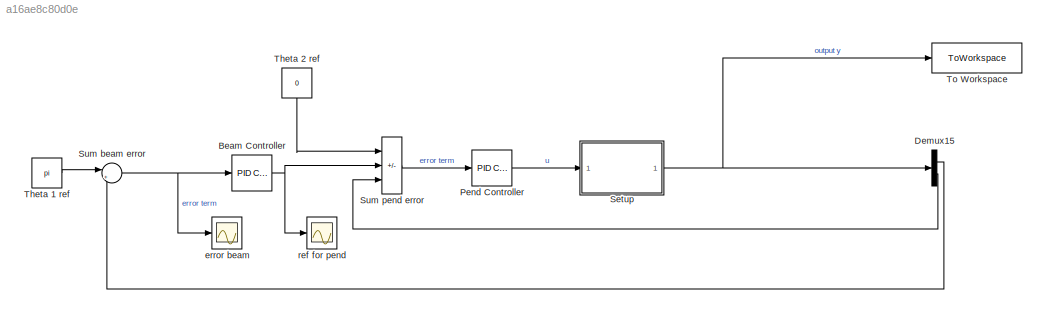
MODEL mdl_a16ae8c80d0e
KIND model
CONFIG AbsTol = auto
CONFIG EnableMultiTasking = off
CONFIG FixedStep = auto
CONFIG MaxStep = auto
CONFIG MinStep = auto
CONFIG RelTol = 1e-3
CONFIG SampleTimeConstraint = Unconstrained
CONFIG SolverName = VariableStepAuto
CONFIG StartTime = 0.0
CONFIG StopTime = 10.0
BLOCK [Reference] Beam Controller  REF=slpidlib/PID Controller
  Ports = [1, 1]
  SourceBlock = slpidlib/PID Controller
  SourceProductBaseCode = SL
  SourceType = PID 1dof
BLOCK [Demux] Demux15
  Outputs = 2
  Ports = [1, 2]
BLOCK [Reference] Pend Controller  REF=slpidlib/PID Controller
  Ports = [1, 1]
  SourceBlock = slpidlib/PID Controller
  SourceProductBaseCode = SL
  SourceType = PID 1dof
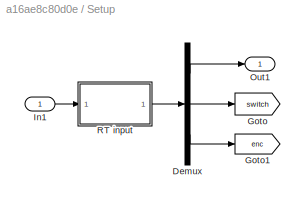
BLOCK [SubSystem] Setup
  Ports = [1, 1]
  RequestExecContextInheritance = off
BLOCK [Demux] Setup/Demux
  Outputs = [2 4 1]
  Ports = [1, 3]
BLOCK [Goto] Setup/Goto
  GotoTag = switch
  TagVisibility = global
BLOCK [Goto] Setup/Goto1
  GotoTag = enc
  TagVisibility = global
BLOCK [Inport] Setup/In1
BLOCK [Outport] Setup/Out1
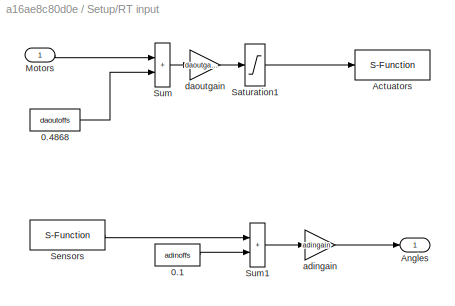
BLOCK [SubSystem] Setup/RT input
  Ports = [1, 1]
  RequestExecContextInheritance = off
BLOCK [Constant] Setup/RT input/0.1
  Value = adinoffs
BLOCK [Constant] Setup/RT input/0.4868
  Value = daoutoffs
BLOCK [S-Function] Setup/RT input/Actuators
  EnableBusSupport = off
  FunctionName = sfusbout
  Parameters = Ts, fugihandle
  Ports = [1]
  SFcnIsStateOwnerBlock = off
  SFunctionDeploymentMode = off
BLOCK [Outport] Setup/RT input/Angles
BLOCK [Inport] Setup/RT input/Motors
BLOCK [Saturate] Setup/RT input/Saturation1
  LowerLimit = -10
  UpperLimit = 10
BLOCK [S-Function] Setup/RT input/Sensors
  EnableBusSupport = off
  FunctionName = sfusbin
  Parameters = Ts, fugihandle, channels
  Ports = [0, 1]
  SFcnIsStateOwnerBlock = off
  SFunctionDeploymentMode = off
BLOCK [Sum] Setup/RT input/Sum
  IconShape = rectangular
  InputSameDT = on
  OutDataTypeStr = Inherit: Same as first input
  Ports = [2, 1]
  SaturateOnIntegerOverflow = on
BLOCK [Sum] Setup/RT input/Sum1
  IconShape = rectangular
  InputSameDT = on
  OutDataTypeStr = Inherit: Same as first input
  Ports = [2, 1]
  SaturateOnIntegerOverflow = on
BLOCK [Gain] Setup/RT input/adingain
  Gain = adingain
  OutDataTypeStr = Inherit: Same as input
  ParamDataTypeStr = Inherit: Same as input
  SaturateOnIntegerOverflow = on
BLOCK [Gain] Setup/RT input/daoutgain
  Gain = daoutgain
  OutDataTypeStr = Inherit: Same as input
  ParamDataTypeStr = Inherit: Same as input
  SaturateOnIntegerOverflow = on
BLOCK [Sum] Sum beam error
  Inputs = |+-
  NameLocation = top
  Ports = [2, 1]
BLOCK [Sum] Sum pend error
  IconShape = rectangular
  Inputs = |++-
  NameLocation = top
  Ports = [3, 1]
BLOCK [Constant] Theta 1 ref
  Value = pi
BLOCK [Constant] Theta 2 ref
  NameLocation = left
  Value = 0
BLOCK [ToWorkspace] To Workspace
  FixptAsFi = on
  MaxDataPoints = inf
  Ports = [1]
  SampleTime = -1
  SaveFormat = Timeseries
  VariableName = simout
BLOCK [Scope] error beam
  Floating = off
  NumInputPorts = 1
  Ports = [1]
  ScopeSpecificationString = Simulink.scopes.TimeScopeBlockCfg('CurrentConfiguration', extmgr.ConfigurationSet(extmgr.Configuration('Core','General UI',true),extmgr.Configuration('Core','Source UI',true),extmgr.Configuration('Sources','WiredSimulink',true,'DataLoggingVariableName','ScopeData1'),extmgr.Configuration('Visuals','Time Domain',true,'SerializedDisplays',{struct('MinYLimReal','-0.92491','MaxYLimReal','0.55426','YLab...<+1396ch>
BLOCK [Scope] ref for pend
  Floating = off
  NumInputPorts = 1
  Ports = [1]
  ScopeSpecificationString = Simulink.scopes.TimeScopeBlockCfg('CurrentConfiguration', extmgr.ConfigurationSet(extmgr.Configuration('Core','General UI',true),extmgr.Configuration('Core','Source UI',true),extmgr.Configuration('Sources','WiredSimulink',true),extmgr.Configuration('Visuals','Time Domain',true,'SerializedDisplays',{struct('MinYLimReal','-0.46869','MaxYLimReal','0.18852','YLabelReal','','MinYLimMag','0.00000','MaxY...<+1362ch>
NET Beam Controller:1 -> Sum pend error:2, ref for pend:1
LINE Demux15:1 -> Sum beam error:2
LINE Demux15:2 -> Sum pend error:3
LINE Pend Controller:1 -> Setup:1
LINE Setup/Demux:1 -> Setup/Out1:1
LINE Setup/Demux:2 -> Setup/Goto:1
LINE Setup/Demux:3 -> Setup/Goto1:1
LINE Setup/In1:1 -> Setup/RT input:1
LINE Setup/RT input/0.1:1 -> Setup/RT input/Sum1:2
LINE Setup/RT input/0.4868:1 -> Setup/RT input/Sum:2
LINE Setup/RT input/Motors:1 -> Setup/RT input/Sum:1
LINE Setup/RT input/Saturation1:1 -> Setup/RT input/Actuators:1
LINE Setup/RT input/Sensors:1 -> Setup/RT input/Sum1:1
LINE Setup/RT input/Sum1:1 -> Setup/RT input/adingain:1
LINE Setup/RT input/Sum:1 -> Setup/RT input/daoutgain:1
LINE Setup/RT input/adingain:1 -> Setup/RT input/Angles:1
LINE Setup/RT input/daoutgain:1 -> Setup/RT input/Saturation1:1
LINE Setup/RT input:1 -> Setup/Demux:1
NET Setup:1 -> Demux15:1, To Workspace:1
NET Sum beam error:1 -> Beam Controller:1, error beam:1
LINE Sum pend error:1 -> Pend Controller:1
LINE Theta 1 ref:1 -> Sum beam error:1
LINE Theta 2 ref:1 -> Sum pend error:1
note: NET lines group one-source signal fan-out (src -> all destinations, sorted); 1:1 wires keep LINE
